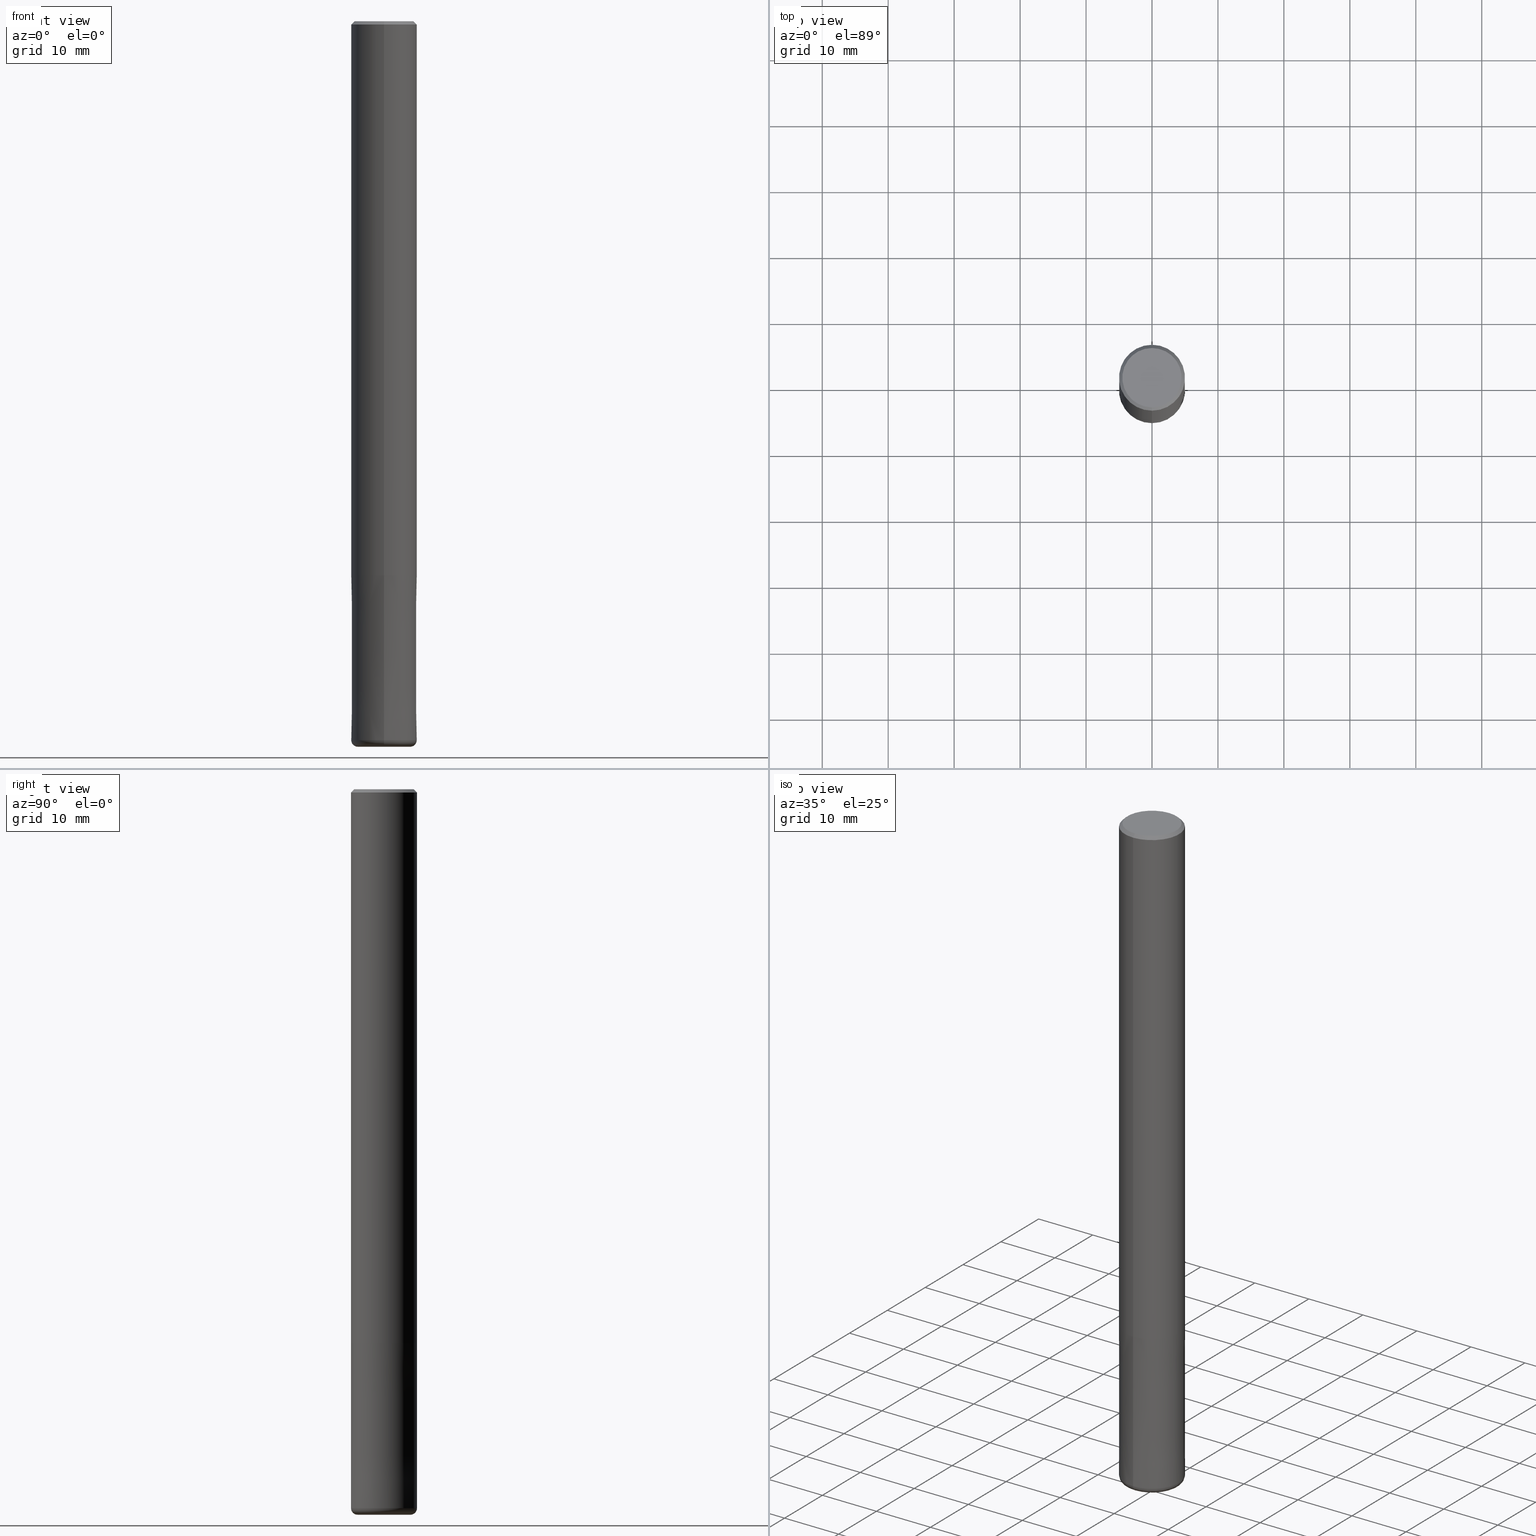
[diagram: canonical four-view strip — front | top / right | iso, engineering-drawing reading convention]
A machine part, canonical four-view strip (front | top / right | iso — engineering-drawing reading convention). The complete STEP part file that produces these views, byte-faithful:
ISO-10303-21;
HEADER;
FILE_DESCRIPTION(('no description'),'unknown implementation level');
FILE_NAME('CNRS4100-10-26-Huellk.stp','  ',('CIMSOURCE GmbH'),('CADClick - KiM GmbH - www.kimweb.de'),'unknown preprocess','ACIS','unknown authorization');
FILE_SCHEMA(('automotive_design'));
ENDSEC;
DATA;
#1=MECHANICAL_DESIGN_GEOMETRIC_PRESENTATION_REPRESENTATION(' ',(#10,#11,#12,#13,#14,#15,#16,#17,#18,#19,#20,#21,#22,#23,#24,#25,#26,#27,#28,#29,#30,#31,#32,#33,#34,#35,#36,#37,#38,#39,#40,#41,#42,#43,#44,#45,#46,#47,#48,#49,#50,#51,#52,#53),#6);
#2=PRODUCT_DEFINITION_CONTEXT('',#54,'design');
#3=APPLICATION_PROTOCOL_DEFINITION('INTERNATIONAL STANDARD','automotive_design',1994,#54);
#4=PRODUCT_CATEGORY_RELATIONSHIP('NONE','NONE',#55,#56);
#5=SHAPE_DEFINITION_REPRESENTATION(#57,#58);
#6= (GEOMETRIC_REPRESENTATION_CONTEXT(3)GLOBAL_UNCERTAINTY_ASSIGNED_CONTEXT((#61))GLOBAL_UNIT_ASSIGNED_CONTEXT((#63,#64,#65))REPRESENTATION_CONTEXT('NONE','WORKSPACE'));
#10=STYLED_ITEM('',(#67),#68);
#11=STYLED_ITEM('',(#69),#70);
#12=STYLED_ITEM('',(#71),#72);
#13=STYLED_ITEM('',(#73),#74);
#14=STYLED_ITEM('',(#75),#76);
#15=STYLED_ITEM('',(#77),#78);
#16=STYLED_ITEM('',(#79),#80);
#17=STYLED_ITEM('',(#81),#82);
#18=STYLED_ITEM('',(#83),#84);
#19=STYLED_ITEM('',(#85),#86);
#20=STYLED_ITEM('',(#87),#88);
#21=STYLED_ITEM('',(#89),#90);
#22=STYLED_ITEM('',(#91),#92);
#23=STYLED_ITEM('',(#93),#94);
#24=STYLED_ITEM('',(#95),#96);
#25=STYLED_ITEM('',(#97),#98);
#26=STYLED_ITEM('',(#99),#100);
#27=STYLED_ITEM('',(#101),#102);
#28=STYLED_ITEM('',(#103),#104);
#29=STYLED_ITEM('',(#105),#106);
#30=STYLED_ITEM('',(#107),#108);
#31=STYLED_ITEM('',(#109),#110);
#32=STYLED_ITEM('',(#111),#112);
#33=STYLED_ITEM('',(#113),#114);
#34=STYLED_ITEM('',(#115),#116);
#35=STYLED_ITEM('',(#117),#118);
#36=STYLED_ITEM('',(#119),#120);
#37=STYLED_ITEM('',(#121),#122);
#38=STYLED_ITEM('',(#123),#124);
#39=STYLED_ITEM('',(#125),#126);
#40=STYLED_ITEM('',(#127),#128);
#41=STYLED_ITEM('',(#129),#130);
#42=STYLED_ITEM('',(#131),#132);
#43=STYLED_ITEM('',(#133),#134);
#44=STYLED_ITEM('',(#135),#136);
#45=STYLED_ITEM('',(#137),#138);
#46=STYLED_ITEM('',(#139),#140);
#47=STYLED_ITEM('',(#141),#142);
#48=STYLED_ITEM('',(#143),#144);
#49=STYLED_ITEM('',(#145),#146);
#50=STYLED_ITEM('',(#147),#148);
#51=STYLED_ITEM('',(#149),#150);
#52=STYLED_ITEM('',(#151),#152);
#53=STYLED_ITEM('',(#153),#154);
#54=APPLICATION_CONTEXT(' ');
#55=PRODUCT_CATEGORY('part','NONE');
#56=PRODUCT_RELATED_PRODUCT_CATEGORY('detail',' ',(#155));
#57=PRODUCT_DEFINITION_SHAPE('NONE','NONE',#156);
#58=ADVANCED_BREP_SHAPE_REPRESENTATION('1',(#132,#157),#6);
#61=UNCERTAINTY_MEASURE_WITH_UNIT(LENGTH_MEASURE(1.0E-006),#63,'','');
#63= (CONVERSION_BASED_UNIT('MILLIMETRE',#160)LENGTH_UNIT()NAMED_UNIT(#163));
#64= (NAMED_UNIT(#165)PLANE_ANGLE_UNIT()SI_UNIT($,.RADIAN.));
#65= (NAMED_UNIT(#165)SOLID_ANGLE_UNIT()SI_UNIT($,.STERADIAN.));
#67=PRESENTATION_STYLE_ASSIGNMENT((#171));
#68=ADVANCED_FACE('',(#172),#173,.T.);
#69=PRESENTATION_STYLE_ASSIGNMENT((#174));
#70=VERTEX_POINT('',#175);
#71=PRESENTATION_STYLE_ASSIGNMENT((#176));
#72=ADVANCED_FACE('',(#177),#178,.T.);
#73=PRESENTATION_STYLE_ASSIGNMENT((#179));
#74=VERTEX_POINT('',#180);
#75=PRESENTATION_STYLE_ASSIGNMENT((#181));
#76=EDGE_CURVE('',#102,#94,#182,.T.);
#77=PRESENTATION_STYLE_ASSIGNMENT((#183));
#78=ADVANCED_FACE('',(#184),#185,.T.);
#79=PRESENTATION_STYLE_ASSIGNMENT((#186));
#80=EDGE_CURVE('',#94,#102,#187,.T.);
#81=PRESENTATION_STYLE_ASSIGNMENT((#188));
#82=VERTEX_POINT('',#189);
#83=PRESENTATION_STYLE_ASSIGNMENT((#190));
#84=ADVANCED_FACE('',(#191),#192,.T.);
#85=PRESENTATION_STYLE_ASSIGNMENT((#193));
#86=ADVANCED_FACE('',(#194),#195,.T.);
#87=PRESENTATION_STYLE_ASSIGNMENT((#196));
#88=ADVANCED_FACE('',(#197),#198,.T.);
#89=PRESENTATION_STYLE_ASSIGNMENT((#199));
#90=VERTEX_POINT('',#200);
#91=PRESENTATION_STYLE_ASSIGNMENT((#201));
#92=ADVANCED_FACE('',(#202),#203,.T.);
#93=PRESENTATION_STYLE_ASSIGNMENT((#204));
#94=VERTEX_POINT('',#205);
#95=PRESENTATION_STYLE_ASSIGNMENT((#206));
#96=VERTEX_POINT('',#207);
#97=PRESENTATION_STYLE_ASSIGNMENT((#208));
#98=EDGE_CURVE('',#74,#144,#209,.T.);
#99=PRESENTATION_STYLE_ASSIGNMENT((#210));
#100=VERTEX_POINT('',#211);
#101=PRESENTATION_STYLE_ASSIGNMENT((#212));
#102=VERTEX_POINT('',#213);
#103=PRESENTATION_STYLE_ASSIGNMENT((#214));
#104=EDGE_CURVE('',#100,#90,#215,.T.);
#105=PRESENTATION_STYLE_ASSIGNMENT((#216));
#106=EDGE_CURVE('',#74,#70,#217,.T.);
#107=PRESENTATION_STYLE_ASSIGNMENT((#218));
#108=EDGE_CURVE('',#82,#94,#219,.T.);
#109=PRESENTATION_STYLE_ASSIGNMENT((#220));
#110=EDGE_CURVE('',#144,#96,#221,.T.);
#111=PRESENTATION_STYLE_ASSIGNMENT((#222));
#112=EDGE_CURVE('',#82,#114,#223,.T.);
#113=PRESENTATION_STYLE_ASSIGNMENT((#224));
#114=VERTEX_POINT('',#225);
#115=PRESENTATION_STYLE_ASSIGNMENT((#226));
#116=ADVANCED_FACE('',(#227),#228,.T.);
#117=PRESENTATION_STYLE_ASSIGNMENT((#229));
#118=ADVANCED_FACE('',(#230),#231,.T.);
#119=PRESENTATION_STYLE_ASSIGNMENT((#232));
#120=EDGE_CURVE('',#96,#70,#233,.T.);
#121=PRESENTATION_STYLE_ASSIGNMENT((#234));
#122=EDGE_CURVE('',#90,#100,#235,.T.);
#123=PRESENTATION_STYLE_ASSIGNMENT((#236));
#124=EDGE_CURVE('',#100,#96,#237,.T.);
#125=PRESENTATION_STYLE_ASSIGNMENT((#238));
#126=EDGE_CURVE('',#70,#74,#239,.T.);
#127=PRESENTATION_STYLE_ASSIGNMENT((#240));
#128=ADVANCED_FACE('',(#241,#242),#243,.T.);
#129=PRESENTATION_STYLE_ASSIGNMENT((#244));
#130=EDGE_CURVE('',#102,#114,#245,.T.);
#131=PRESENTATION_STYLE_ASSIGNMENT((#246));
#132=MANIFOLD_SOLID_BREP('1',#247);
#133=PRESENTATION_STYLE_ASSIGNMENT((#248));
#134=ADVANCED_FACE('',(#249),#250,.T.);
#135=PRESENTATION_STYLE_ASSIGNMENT((#251));
#136=EDGE_CURVE('',#144,#90,#252,.T.);
#137=PRESENTATION_STYLE_ASSIGNMENT((#253));
#138=VERTEX_POINT('',#254);
#139=PRESENTATION_STYLE_ASSIGNMENT((#255));
#140=EDGE_CURVE('',#138,#148,#256,.T.);
#141=PRESENTATION_STYLE_ASSIGNMENT((#257));
#142=EDGE_CURVE('',#96,#144,#258,.T.);
#143=PRESENTATION_STYLE_ASSIGNMENT((#259));
#144=VERTEX_POINT('',#260);
#145=PRESENTATION_STYLE_ASSIGNMENT((#261));
#146=EDGE_CURVE('',#114,#82,#262,.T.);
#147=PRESENTATION_STYLE_ASSIGNMENT((#263));
#148=VERTEX_POINT('',#264);
#149=PRESENTATION_STYLE_ASSIGNMENT((#265));
#150=EDGE_CURVE('',#148,#138,#266,.T.);
#151=PRESENTATION_STYLE_ASSIGNMENT((#267));
#152=EDGE_CURVE('',#102,#138,#268,.T.);
#153=PRESENTATION_STYLE_ASSIGNMENT((#269));
#154=EDGE_CURVE('',#148,#94,#270,.T.);
#155=PRODUCT('1','1','PART-1-DESC',(#271));
#156=PRODUCT_DEFINITION('NONE','NONE',#272,#2);
#157=AXIS2_PLACEMENT_3D('',#273,#274,#275);
#160=LENGTH_MEASURE_WITH_UNIT(LENGTH_MEASURE(1.0),#276);
#163=DIMENSIONAL_EXPONENTS(1.0,0.0,0.0,0.0,0.0,0.0,0.0);
#165=DIMENSIONAL_EXPONENTS(0.0,0.0,0.0,0.0,0.0,0.0,0.0);
#171=SURFACE_STYLE_USAGE(.BOTH.,#277);
#172=FACE_OUTER_BOUND('',#278,.T.);
#173=CONICAL_SURFACE('',#279,4.75,0.785398163397448);
#174=POINT_STYLE(' ',#280,POSITIVE_LENGTH_MEASURE(1.0E-006),#281);
#175=CARTESIAN_POINT('',(0.0,5.0,-84.0));
#176=SURFACE_STYLE_USAGE(.BOTH.,#282);
#177=FACE_OUTER_BOUND('',#283,.T.);
#178=CYLINDRICAL_SURFACE('',#284,5.0);
#179=POINT_STYLE(' ',#285,POSITIVE_LENGTH_MEASURE(1.0E-006),#286);
#180=CARTESIAN_POINT('',(6.12303176911189E-016,-5.0,-84.0));
#181=CURVE_STYLE('',#287,POSITIVE_LENGTH_MEASURE(1.0E-006),#288);
#182=CIRCLE('',#289,5.0);
#183=SURFACE_STYLE_USAGE(.BOTH.,#290);
#184=FACE_OUTER_BOUND('',#291,.T.);
#185=PLANE('',#292);
#186=CURVE_STYLE('',#293,POSITIVE_LENGTH_MEASURE(1.0E-006),#294);
#187=CIRCLE('',#295,5.0);
#188=POINT_STYLE(' ',#296,POSITIVE_LENGTH_MEASURE(1.0E-006),#297);
#189=CARTESIAN_POINT('',(0.0,4.9999,-84.0));
#190=SURFACE_STYLE_USAGE(.BOTH.,#298);
#191=FACE_OUTER_BOUND('',#299,.T.);
#192=TOROIDAL_SURFACE('',#300,4.00000000000001,0.999999999999989);
#193=SURFACE_STYLE_USAGE(.BOTH.,#301);
#194=FACE_OUTER_BOUND('',#302,.T.);
#195=CONICAL_SURFACE('',#303,4.99995,3.99999999996934E-006);
#196=SURFACE_STYLE_USAGE(.BOTH.,#304);
#197=FACE_OUTER_BOUND('',#305,.T.);
#198=PLANE('',#306);
#199=POINT_STYLE(' ',#307,POSITIVE_LENGTH_MEASURE(1.0E-006),#308);
#200=CARTESIAN_POINT('',(5.5107285922007E-016,-4.5,0.0));
#201=SURFACE_STYLE_USAGE(.BOTH.,#309);
#202=FACE_OUTER_BOUND('',#310,.T.);
#203=TOROIDAL_SURFACE('',#311,4.00000000000001,0.999999999999989);
#204=POINT_STYLE(' ',#312,POSITIVE_LENGTH_MEASURE(1.0E-006),#313);
#205=CARTESIAN_POINT('',(0.0,5.0,-109.0));
#206=POINT_STYLE(' ',#314,POSITIVE_LENGTH_MEASURE(1.0E-006),#315);
#207=CARTESIAN_POINT('',(0.0,5.0,-0.5));
#208=CURVE_STYLE('',#316,POSITIVE_LENGTH_MEASURE(1.0E-006),#317);
#209=LINE('',#318,#319);
#210=POINT_STYLE(' ',#320,POSITIVE_LENGTH_MEASURE(1.0E-006),#321);
#211=CARTESIAN_POINT('',(0.0,4.5,0.0));
#212=POINT_STYLE(' ',#322,POSITIVE_LENGTH_MEASURE(1.0E-006),#323);
#213=CARTESIAN_POINT('',(6.12303176911188E-016,-5.0,-109.0));
#214=CURVE_STYLE('',#324,POSITIVE_LENGTH_MEASURE(1.0E-006),#325);
#215=CIRCLE('',#326,4.5);
#216=CURVE_STYLE('',#327,POSITIVE_LENGTH_MEASURE(1.0E-006),#328);
#217=CIRCLE('',#329,5.0);
#218=CURVE_STYLE('',#330,POSITIVE_LENGTH_MEASURE(1.0E-006),#331);
#219=LINE('',#332,#333);
#220=CURVE_STYLE('',#334,POSITIVE_LENGTH_MEASURE(1.0E-006),#335);
#221=CIRCLE('',#336,5.0);
#222=CURVE_STYLE('',#337,POSITIVE_LENGTH_MEASURE(1.0E-006),#338);
#223=CIRCLE('',#339,4.9999);
#224=POINT_STYLE(' ',#340,POSITIVE_LENGTH_MEASURE(1.0E-006),#341);
#225=CARTESIAN_POINT('',(6.1229093084765E-016,-4.9999,-84.0));
#226=SURFACE_STYLE_USAGE(.BOTH.,#342);
#227=FACE_OUTER_BOUND('',#343,.T.);
#228=CONICAL_SURFACE('',#344,4.75,0.785398163397448);
#229=SURFACE_STYLE_USAGE(.BOTH.,#345);
#230=FACE_OUTER_BOUND('',#346,.T.);
#231=CYLINDRICAL_SURFACE('',#347,5.0);
#232=CURVE_STYLE('',#348,POSITIVE_LENGTH_MEASURE(1.0E-006),#349);
#233=LINE('',#350,#351);
#234=CURVE_STYLE('',#352,POSITIVE_LENGTH_MEASURE(1.0E-006),#353);
#235=CIRCLE('',#354,4.5);
#236=CURVE_STYLE('',#355,POSITIVE_LENGTH_MEASURE(1.0E-006),#356);
#237=LINE('',#357,#358);
#238=CURVE_STYLE('',#359,POSITIVE_LENGTH_MEASURE(1.0E-006),#360);
#239=CIRCLE('',#361,5.0);
#240=SURFACE_STYLE_USAGE(.BOTH.,#362);
#241=FACE_OUTER_BOUND('',#363,.T.);
#242=FACE_BOUND('',#364,.T.);
#243=PLANE('',#365);
#244=CURVE_STYLE('',#366,POSITIVE_LENGTH_MEASURE(1.0E-006),#367);
#245=LINE('',#368,#369);
#246=SURFACE_STYLE_USAGE(.BOTH.,#370);
#247=CLOSED_SHELL('',(#84,#86,#72,#68,#128,#88,#116,#118,#134,#92,#78));
#248=SURFACE_STYLE_USAGE(.BOTH.,#371);
#249=FACE_OUTER_BOUND('',#372,.T.);
#250=CONICAL_SURFACE('',#373,4.99995,3.99999999996934E-006);
#251=CURVE_STYLE('',#374,POSITIVE_LENGTH_MEASURE(1.0E-006),#375);
#252=LINE('',#376,#377);
#253=POINT_STYLE(' ',#378,POSITIVE_LENGTH_MEASURE(1.0E-006),#379);
#254=CARTESIAN_POINT('',(4.89842541528951E-016,-4.0,-110.0));
#255=CURVE_STYLE('',#380,POSITIVE_LENGTH_MEASURE(1.0E-006),#381);
#256=CIRCLE('',#382,4.0);
#257=CURVE_STYLE('',#383,POSITIVE_LENGTH_MEASURE(1.0E-006),#384);
#258=CIRCLE('',#385,5.0);
#259=POINT_STYLE(' ',#386,POSITIVE_LENGTH_MEASURE(1.0E-006),#387);
#260=CARTESIAN_POINT('',(6.12303176911189E-016,-5.0,-0.5));
#261=CURVE_STYLE('',#388,POSITIVE_LENGTH_MEASURE(1.0E-006),#389);
#262=CIRCLE('',#390,4.9999);
#263=POINT_STYLE(' ',#391,POSITIVE_LENGTH_MEASURE(1.0E-006),#392);
#264=CARTESIAN_POINT('',(0.0,4.0,-110.0));
#265=CURVE_STYLE('',#393,POSITIVE_LENGTH_MEASURE(1.0E-006),#394);
#266=CIRCLE('',#395,4.0);
#267=CURVE_STYLE('',#396,POSITIVE_LENGTH_MEASURE(1.0E-006),#397);
#268=CIRCLE('',#398,0.999999999999989);
#269=CURVE_STYLE('',#399,POSITIVE_LENGTH_MEASURE(1.0E-006),#400);
#270=CIRCLE('',#401,0.999999999999989);
#271=PRODUCT_CONTEXT('',#54,'mechanical');
#272=PRODUCT_DEFINITION_FORMATION_WITH_SPECIFIED_SOURCE(' ','NONE',#155,.NOT_KNOWN.);
#273=CARTESIAN_POINT('',(0.0,0.0,0.0));
#274=DIRECTION('',(0.0,0.0,1.0));
#275=DIRECTION('',(1.0,0.0,0.0));
#276= (NAMED_UNIT(#163)LENGTH_UNIT()SI_UNIT(.MILLI.,.METRE.));
#277=SURFACE_SIDE_STYLE('',(#403));
#278=EDGE_LOOP('',(#404,#405,#406,#407));
#279=AXIS2_PLACEMENT_3D('',#408,#409,#410);
#280=PRE_DEFINED_MARKER('');
#281=COLOUR_RGB('',0.498039215803146,0.498039215803146,0.498039215803146);
#282=SURFACE_SIDE_STYLE('',(#411));
#283=EDGE_LOOP('',(#412,#413,#414,#415));
#284=AXIS2_PLACEMENT_3D('',#416,#417,#418);
#285=PRE_DEFINED_MARKER('');
#286=COLOUR_RGB('',0.498039215803146,0.498039215803146,0.498039215803146);
#287=DRAUGHTING_PRE_DEFINED_CURVE_FONT('continuous');
#288=COLOUR_RGB('',0.800000011920929,0.800000011920929,0.800000011920929);
#289=AXIS2_PLACEMENT_3D('',#419,#420,#421);
#290=SURFACE_SIDE_STYLE('',(#422));
#291=EDGE_LOOP('',(#423,#424));
#292=AXIS2_PLACEMENT_3D('',#425,#426,#427);
#293=DRAUGHTING_PRE_DEFINED_CURVE_FONT('continuous');
#294=COLOUR_RGB('',0.800000011920929,0.800000011920929,0.800000011920929);
#295=AXIS2_PLACEMENT_3D('',#428,#429,#430);
#296=PRE_DEFINED_MARKER('');
#297=COLOUR_RGB('',0.800000011920929,0.800000011920929,0.800000011920929);
#298=SURFACE_SIDE_STYLE('',(#431));
#299=EDGE_LOOP('',(#432,#433,#434,#435));
#300=AXIS2_PLACEMENT_3D('',#436,#437,#438);
#301=SURFACE_SIDE_STYLE('',(#439));
#302=EDGE_LOOP('',(#440,#441,#442,#443));
#303=AXIS2_PLACEMENT_3D('',#444,#445,#446);
#304=SURFACE_SIDE_STYLE('',(#447));
#305=EDGE_LOOP('',(#448,#449));
#306=AXIS2_PLACEMENT_3D('',#450,#451,#452);
#307=PRE_DEFINED_MARKER('');
#308=COLOUR_RGB('',0.498039215803146,0.498039215803146,0.498039215803146);
#309=SURFACE_SIDE_STYLE('',(#453));
#310=EDGE_LOOP('',(#454,#455,#456,#457));
#311=AXIS2_PLACEMENT_3D('',#458,#459,#460);
#312=PRE_DEFINED_MARKER('');
#313=COLOUR_RGB('',0.800000011920929,0.800000011920929,0.800000011920929);
#314=PRE_DEFINED_MARKER('');
#315=COLOUR_RGB('',0.498039215803146,0.498039215803146,0.498039215803146);
#316=DRAUGHTING_PRE_DEFINED_CURVE_FONT('continuous');
#317=COLOUR_RGB('',0.498039215803146,0.498039215803146,0.498039215803146);
#318=CARTESIAN_POINT('',(6.12303176911189E-016,-5.0,-42.25));
#319=VECTOR('',#461,1.0);
#320=PRE_DEFINED_MARKER('');
#321=COLOUR_RGB('',0.498039215803146,0.498039215803146,0.498039215803146);
#322=PRE_DEFINED_MARKER('');
#323=COLOUR_RGB('',0.800000011920929,0.800000011920929,0.800000011920929);
#324=DRAUGHTING_PRE_DEFINED_CURVE_FONT('continuous');
#325=COLOUR_RGB('',0.498039215803146,0.498039215803146,0.498039215803146);
#326=AXIS2_PLACEMENT_3D('',#462,#463,#464);
#327=DRAUGHTING_PRE_DEFINED_CURVE_FONT('continuous');
#328=COLOUR_RGB('',0.498039215803146,0.498039215803146,0.498039215803146);
#329=AXIS2_PLACEMENT_3D('',#465,#466,#467);
#330=DRAUGHTING_PRE_DEFINED_CURVE_FONT('continuous');
#331=COLOUR_RGB('',0.800000011920929,0.800000011920929,0.800000011920929);
#332=CARTESIAN_POINT('',(-6.12297053879419E-016,4.99995,-96.5));
#333=VECTOR('',#468,1.0);
#334=DRAUGHTING_PRE_DEFINED_CURVE_FONT('continuous');
#335=COLOUR_RGB('',0.498039215803146,0.498039215803146,0.498039215803146);
#336=AXIS2_PLACEMENT_3D('',#469,#470,#471);
#337=DRAUGHTING_PRE_DEFINED_CURVE_FONT('continuous');
#338=COLOUR_RGB('',0.800000011920929,0.800000011920929,0.800000011920929);
#339=AXIS2_PLACEMENT_3D('',#472,#473,#474);
#340=PRE_DEFINED_MARKER('');
#341=COLOUR_RGB('',0.800000011920929,0.800000011920929,0.800000011920929);
#342=SURFACE_SIDE_STYLE('',(#475));
#343=EDGE_LOOP('',(#476,#477,#478,#479));
#344=AXIS2_PLACEMENT_3D('',#480,#481,#482);
#345=SURFACE_SIDE_STYLE('',(#483));
#346=EDGE_LOOP('',(#484,#485,#486,#487));
#347=AXIS2_PLACEMENT_3D('',#488,#489,#490);
#348=DRAUGHTING_PRE_DEFINED_CURVE_FONT('continuous');
#349=COLOUR_RGB('',0.498039215803146,0.498039215803146,0.498039215803146);
#350=CARTESIAN_POINT('',(-6.12303176911189E-016,5.0,-42.25));
#351=VECTOR('',#491,1.0);
#352=DRAUGHTING_PRE_DEFINED_CURVE_FONT('continuous');
#353=COLOUR_RGB('',0.498039215803146,0.498039215803146,0.498039215803146);
#354=AXIS2_PLACEMENT_3D('',#492,#493,#494);
#355=DRAUGHTING_PRE_DEFINED_CURVE_FONT('continuous');
#356=COLOUR_RGB('',0.498039215803146,0.498039215803146,0.498039215803146);
#357=CARTESIAN_POINT('',(-5.81688018065629E-016,4.75,-0.25));
#358=VECTOR('',#495,1.0);
#359=DRAUGHTING_PRE_DEFINED_CURVE_FONT('continuous');
#360=COLOUR_RGB('',0.498039215803146,0.498039215803146,0.498039215803146);
#361=AXIS2_PLACEMENT_3D('',#496,#497,#498);
#362=SURFACE_SIDE_STYLE('',(#499));
#363=EDGE_LOOP('',(#500,#501));
#364=EDGE_LOOP('',(#502,#503));
#365=AXIS2_PLACEMENT_3D('',#504,#505,#506);
#366=DRAUGHTING_PRE_DEFINED_CURVE_FONT('continuous');
#367=COLOUR_RGB('',0.800000011920929,0.800000011920929,0.800000011920929);
#368=CARTESIAN_POINT('',(6.12297053879419E-016,-4.99995,-96.5));
#369=VECTOR('',#507,1.0);
#370=SURFACE_SIDE_STYLE('',(#508));
#371=SURFACE_SIDE_STYLE('',(#509));
#372=EDGE_LOOP('',(#510,#511,#512,#513));
#373=AXIS2_PLACEMENT_3D('',#514,#515,#516);
#374=DRAUGHTING_PRE_DEFINED_CURVE_FONT('continuous');
#375=COLOUR_RGB('',0.498039215803146,0.498039215803146,0.498039215803146);
#376=CARTESIAN_POINT('',(5.81688018065629E-016,-4.75,-0.25));
#377=VECTOR('',#517,1.0);
#378=PRE_DEFINED_MARKER('');
#379=COLOUR_RGB('',0.800000011920929,0.800000011920929,0.800000011920929);
#380=DRAUGHTING_PRE_DEFINED_CURVE_FONT('continuous');
#381=COLOUR_RGB('',0.800000011920929,0.800000011920929,0.800000011920929);
#382=AXIS2_PLACEMENT_3D('',#518,#519,#520);
#383=DRAUGHTING_PRE_DEFINED_CURVE_FONT('continuous');
#384=COLOUR_RGB('',0.498039215803146,0.498039215803146,0.498039215803146);
#385=AXIS2_PLACEMENT_3D('',#521,#522,#523);
#386=PRE_DEFINED_MARKER('');
#387=COLOUR_RGB('',0.498039215803146,0.498039215803146,0.498039215803146);
#388=DRAUGHTING_PRE_DEFINED_CURVE_FONT('continuous');
#389=COLOUR_RGB('',0.800000011920929,0.800000011920929,0.800000011920929);
#390=AXIS2_PLACEMENT_3D('',#524,#525,#526);
#391=PRE_DEFINED_MARKER('');
#392=COLOUR_RGB('',0.800000011920929,0.800000011920929,0.800000011920929);
#393=DRAUGHTING_PRE_DEFINED_CURVE_FONT('continuous');
#394=COLOUR_RGB('',0.800000011920929,0.800000011920929,0.800000011920929);
#395=AXIS2_PLACEMENT_3D('',#527,#528,#529);
#396=DRAUGHTING_PRE_DEFINED_CURVE_FONT('continuous');
#397=COLOUR_RGB('',0.800000011920929,0.800000011920929,0.800000011920929);
#398=AXIS2_PLACEMENT_3D('',#530,#531,#532);
#399=DRAUGHTING_PRE_DEFINED_CURVE_FONT('continuous');
#400=COLOUR_RGB('',0.800000011920929,0.800000011920929,0.800000011920929);
#401=AXIS2_PLACEMENT_3D('',#533,#534,#535);
#403=SURFACE_STYLE_FILL_AREA(#536);
#404=ORIENTED_EDGE('',*,*,#124,.F.);
#405=ORIENTED_EDGE('',*,*,#104,.T.);
#406=ORIENTED_EDGE('',*,*,#136,.F.);
#407=ORIENTED_EDGE('',*,*,#142,.F.);
#408=CARTESIAN_POINT('',(0.0,0.0,-0.25));
#409=DIRECTION('',(0.0,-0.0,-1.0));
#410=DIRECTION('',(0.0,1.0,0.0));
#411=SURFACE_STYLE_FILL_AREA(#537);
#412=ORIENTED_EDGE('',*,*,#120,.F.);
#413=ORIENTED_EDGE('',*,*,#142,.T.);
#414=ORIENTED_EDGE('',*,*,#98,.F.);
#415=ORIENTED_EDGE('',*,*,#126,.F.);
#416=CARTESIAN_POINT('',(0.0,0.0,-42.25));
#417=DIRECTION('',(-0.0,-0.0,1.0));
#418=DIRECTION('',(0.0,1.0,0.0));
#419=CARTESIAN_POINT('',(0.0,0.0,-109.0));
#420=DIRECTION('',(0.0,0.0,-1.0));
#421=DIRECTION('',(0.0,1.0,0.0));
#422=SURFACE_STYLE_FILL_AREA(#538);
#423=ORIENTED_EDGE('',*,*,#150,.T.);
#424=ORIENTED_EDGE('',*,*,#140,.T.);
#425=CARTESIAN_POINT('',(0.0,2.0,-110.0));
#426=DIRECTION('',(0.0,0.0,-1.0));
#427=DIRECTION('',(0.0,1.0,0.0));
#428=CARTESIAN_POINT('',(0.0,0.0,-109.0));
#429=DIRECTION('',(0.0,0.0,-1.0));
#430=DIRECTION('',(0.0,1.0,0.0));
#431=SURFACE_STYLE_FILL_AREA(#539);
#432=ORIENTED_EDGE('',*,*,#152,.F.);
#433=ORIENTED_EDGE('',*,*,#76,.T.);
#434=ORIENTED_EDGE('',*,*,#154,.F.);
#435=ORIENTED_EDGE('',*,*,#140,.F.);
#436=CARTESIAN_POINT('',(0.0,0.0,-109.0));
#437=DIRECTION('',(0.0,0.0,-1.0));
#438=DIRECTION('',(0.0,-1.0,0.0));
#439=SURFACE_STYLE_FILL_AREA(#540);
#440=ORIENTED_EDGE('',*,*,#108,.F.);
#441=ORIENTED_EDGE('',*,*,#112,.T.);
#442=ORIENTED_EDGE('',*,*,#130,.F.);
#443=ORIENTED_EDGE('',*,*,#80,.F.);
#444=CARTESIAN_POINT('',(0.0,0.0,-96.5));
#445=DIRECTION('',(0.0,-0.0,-1.0));
#446=DIRECTION('',(0.0,1.0,0.0));
#447=SURFACE_STYLE_FILL_AREA(#541);
#448=ORIENTED_EDGE('',*,*,#104,.F.);
#449=ORIENTED_EDGE('',*,*,#122,.F.);
#450=CARTESIAN_POINT('',(0.0,2.25,0.0));
#451=DIRECTION('',(-0.0,0.0,1.0));
#452=DIRECTION('',(0.0,-1.0,0.0));
#453=SURFACE_STYLE_FILL_AREA(#542);
#454=ORIENTED_EDGE('',*,*,#152,.T.);
#455=ORIENTED_EDGE('',*,*,#150,.F.);
#456=ORIENTED_EDGE('',*,*,#154,.T.);
#457=ORIENTED_EDGE('',*,*,#80,.T.);
#458=CARTESIAN_POINT('',(0.0,0.0,-109.0));
#459=DIRECTION('',(0.0,0.0,-1.0));
#460=DIRECTION('',(0.0,-1.0,0.0));
#461=DIRECTION('',(-0.0,-0.0,1.0));
#462=CARTESIAN_POINT('',(0.0,0.0,0.0));
#463=DIRECTION('',(0.0,0.0,-1.0));
#464=DIRECTION('',(0.0,1.0,0.0));
#465=CARTESIAN_POINT('',(0.0,0.0,-84.0));
#466=DIRECTION('',(0.0,0.0,-1.0));
#467=DIRECTION('',(0.0,1.0,0.0));
#468=DIRECTION('',(-4.8984254152389E-022,3.99999999995868E-006,-0.999999999992));
#469=CARTESIAN_POINT('',(0.0,0.0,-0.5));
#470=DIRECTION('',(0.0,0.0,-1.0));
#471=DIRECTION('',(0.0,1.0,0.0));
#472=CARTESIAN_POINT('',(0.0,0.0,-84.0));
#473=DIRECTION('',(0.0,0.0,-1.0));
#474=DIRECTION('',(0.0,1.0,0.0));
#475=SURFACE_STYLE_FILL_AREA(#543);
#476=ORIENTED_EDGE('',*,*,#124,.T.);
#477=ORIENTED_EDGE('',*,*,#110,.F.);
#478=ORIENTED_EDGE('',*,*,#136,.T.);
#479=ORIENTED_EDGE('',*,*,#122,.T.);
#480=CARTESIAN_POINT('',(0.0,0.0,-0.25));
#481=DIRECTION('',(0.0,-0.0,-1.0));
#482=DIRECTION('',(0.0,1.0,0.0));
#483=SURFACE_STYLE_FILL_AREA(#544);
#484=ORIENTED_EDGE('',*,*,#120,.T.);
#485=ORIENTED_EDGE('',*,*,#106,.F.);
#486=ORIENTED_EDGE('',*,*,#98,.T.);
#487=ORIENTED_EDGE('',*,*,#110,.T.);
#488=CARTESIAN_POINT('',(0.0,0.0,-42.25));
#489=DIRECTION('',(-0.0,-0.0,1.0));
#490=DIRECTION('',(0.0,1.0,0.0));
#491=DIRECTION('',(0.0,0.0,-1.0));
#492=CARTESIAN_POINT('',(0.0,0.0,0.0));
#493=DIRECTION('',(0.0,0.0,-1.0));
#494=DIRECTION('',(0.0,1.0,0.0));
#495=DIRECTION('',(-8.65927457071936E-017,0.707106781186548,-0.707106781186548));
#496=CARTESIAN_POINT('',(0.0,0.0,-84.0));
#497=DIRECTION('',(0.0,0.0,-1.0));
#498=DIRECTION('',(0.0,1.0,0.0));
#499=SURFACE_STYLE_FILL_AREA(#545);
#500=ORIENTED_EDGE('',*,*,#126,.T.);
#501=ORIENTED_EDGE('',*,*,#106,.T.);
#502=ORIENTED_EDGE('',*,*,#112,.F.);
#503=ORIENTED_EDGE('',*,*,#146,.F.);
#504=CARTESIAN_POINT('',(0.0,2.5,-84.0));
#505=DIRECTION('',(0.0,0.0,-1.0));
#506=DIRECTION('',(0.0,1.0,0.0));
#507=DIRECTION('',(-4.8984254152389E-022,3.99999999995868E-006,0.999999999992));
#508=SURFACE_STYLE_FILL_AREA(#546);
#509=SURFACE_STYLE_FILL_AREA(#547);
#510=ORIENTED_EDGE('',*,*,#108,.T.);
#511=ORIENTED_EDGE('',*,*,#76,.F.);
#512=ORIENTED_EDGE('',*,*,#130,.T.);
#513=ORIENTED_EDGE('',*,*,#146,.T.);
#514=CARTESIAN_POINT('',(0.0,0.0,-96.5));
#515=DIRECTION('',(0.0,-0.0,-1.0));
#516=DIRECTION('',(0.0,1.0,0.0));
#517=DIRECTION('',(-8.65927457071936E-017,0.707106781186548,0.707106781186548));
#518=CARTESIAN_POINT('',(0.0,0.0,-110.0));
#519=DIRECTION('',(0.0,0.0,-1.0));
#520=DIRECTION('',(0.0,1.0,0.0));
#521=CARTESIAN_POINT('',(0.0,0.0,-0.5));
#522=DIRECTION('',(0.0,0.0,-1.0));
#523=DIRECTION('',(0.0,1.0,0.0));
#524=CARTESIAN_POINT('',(0.0,0.0,-84.0));
#525=DIRECTION('',(0.0,0.0,-1.0));
#526=DIRECTION('',(0.0,1.0,0.0));
#527=CARTESIAN_POINT('',(0.0,0.0,-110.0));
#528=DIRECTION('',(0.0,0.0,-1.0));
#529=DIRECTION('',(0.0,1.0,0.0));
#530=CARTESIAN_POINT('',(4.89842541528952E-016,-4.00000000000001,-109.0));
#531=DIRECTION('',(1.0,1.22460635382238E-016,0.0));
#532=DIRECTION('',(1.22460635382238E-016,-1.0,-0.0));
#533=CARTESIAN_POINT('',(-4.89842541528952E-016,4.00000000000001,-109.0));
#534=DIRECTION('',(1.0,1.22460635382238E-016,0.0));
#535=DIRECTION('',(-1.22460635382238E-016,1.0,0.0));
#536=FILL_AREA_STYLE('',(#548));
#537=FILL_AREA_STYLE('',(#549));
#538=FILL_AREA_STYLE('',(#550));
#539=FILL_AREA_STYLE('',(#551));
#540=FILL_AREA_STYLE('',(#552));
#541=FILL_AREA_STYLE('',(#553));
#542=FILL_AREA_STYLE('',(#554));
#543=FILL_AREA_STYLE('',(#555));
#544=FILL_AREA_STYLE('',(#556));
#545=FILL_AREA_STYLE('',(#557));
#546=FILL_AREA_STYLE('',(#558));
#547=FILL_AREA_STYLE('',(#559));
#548=FILL_AREA_STYLE_COLOUR('',#560);
#549=FILL_AREA_STYLE_COLOUR('',#561);
#550=FILL_AREA_STYLE_COLOUR('',#562);
#551=FILL_AREA_STYLE_COLOUR('',#563);
#552=FILL_AREA_STYLE_COLOUR('',#564);
#553=FILL_AREA_STYLE_COLOUR('',#565);
#554=FILL_AREA_STYLE_COLOUR('',#566);
#555=FILL_AREA_STYLE_COLOUR('',#567);
#556=FILL_AREA_STYLE_COLOUR('',#568);
#557=FILL_AREA_STYLE_COLOUR('',#569);
#558=FILL_AREA_STYLE_COLOUR('',#570);
#559=FILL_AREA_STYLE_COLOUR('',#571);
#560=COLOUR_RGB('',0.498039215803146,0.498039215803146,0.498039215803146);
#561=COLOUR_RGB('',0.498039215803146,0.498039215803146,0.498039215803146);
#562=COLOUR_RGB('',0.800000011920929,0.800000011920929,0.800000011920929);
#563=COLOUR_RGB('',0.800000011920929,0.800000011920929,0.800000011920929);
#564=COLOUR_RGB('',0.800000011920929,0.800000011920929,0.800000011920929);
#565=COLOUR_RGB('',0.498039215803146,0.498039215803146,0.498039215803146);
#566=COLOUR_RGB('',0.800000011920929,0.800000011920929,0.800000011920929);
#567=COLOUR_RGB('',0.498039215803146,0.498039215803146,0.498039215803146);
#568=COLOUR_RGB('',0.498039215803146,0.498039215803146,0.498039215803146);
#569=COLOUR_RGB('',0.498039215803146,0.498039215803146,0.498039215803146);
#570=COLOUR_RGB('',0.800000011920929,0.800000011920929,0.800000011920929);
#571=COLOUR_RGB('',0.800000011920929,0.800000011920929,0.800000011920929);
#572=AXIS2_PLACEMENT_3D('PCS',#573,#574,#575);
#573=CARTESIAN_POINT('',(0.0,0.0,0.0));
#574=DIRECTION('',(0.0,0.0,1.0));
#575=DIRECTION('',(1.0,0.0,0.0));
#576=AXIS2_PLACEMENT_3D('CIP',#577,#578,#579);
#577=CARTESIAN_POINT('',(0.0,0.0,-110.0));
#578=DIRECTION('',(0.0,0.0,1.0));
#579=DIRECTION('',(1.0,0.0,0.0));
#580=AXIS2_PLACEMENT_3D('CRP',#581,#582,#583);
#581=CARTESIAN_POINT('',(-5.0,0.0,-110.0));
#582=DIRECTION('',(0.0,0.0,1.0));
#583=DIRECTION('',(1.0,0.0,0.0));
#584=AXIS2_PLACEMENT_3D('MCS',#585,#586,#587);
#585=CARTESIAN_POINT('',(0.0,0.0,-84.0));
#586=DIRECTION('',(0.0,0.0,1.0));
#587=DIRECTION('',(1.0,0.0,0.0));
#588=CONSTRUCTIVE_GEOMETRY_REPRESENTATION_RELATIONSHIP('coordinate systems',$,#58,#589);
#589=CONSTRUCTIVE_GEOMETRY_REPRESENTATION('coordinate systems',(#572,#576,#580,#584),#6);
ENDSEC;
END-ISO-10303-21;
